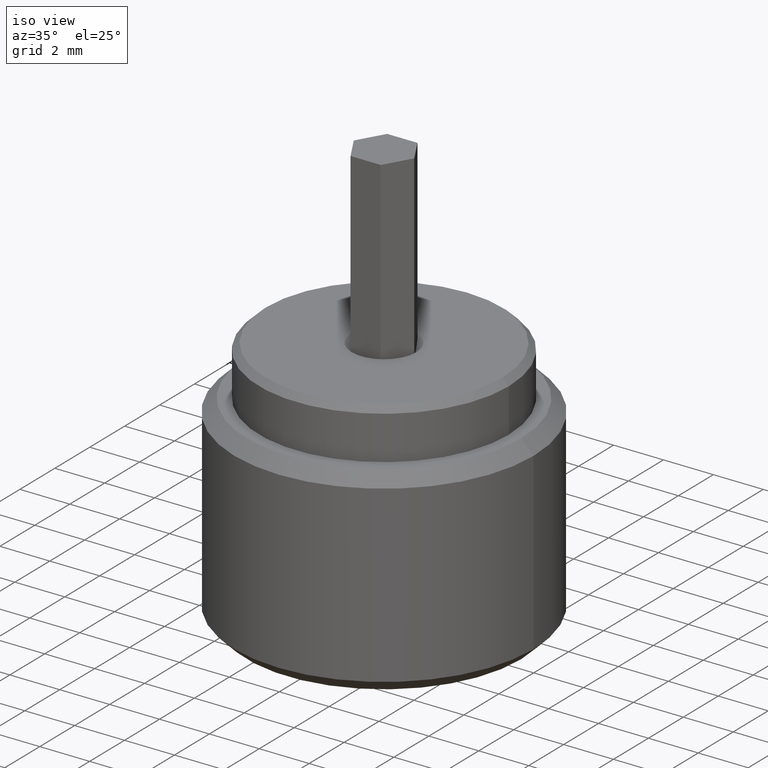
[diagram: clean part render]
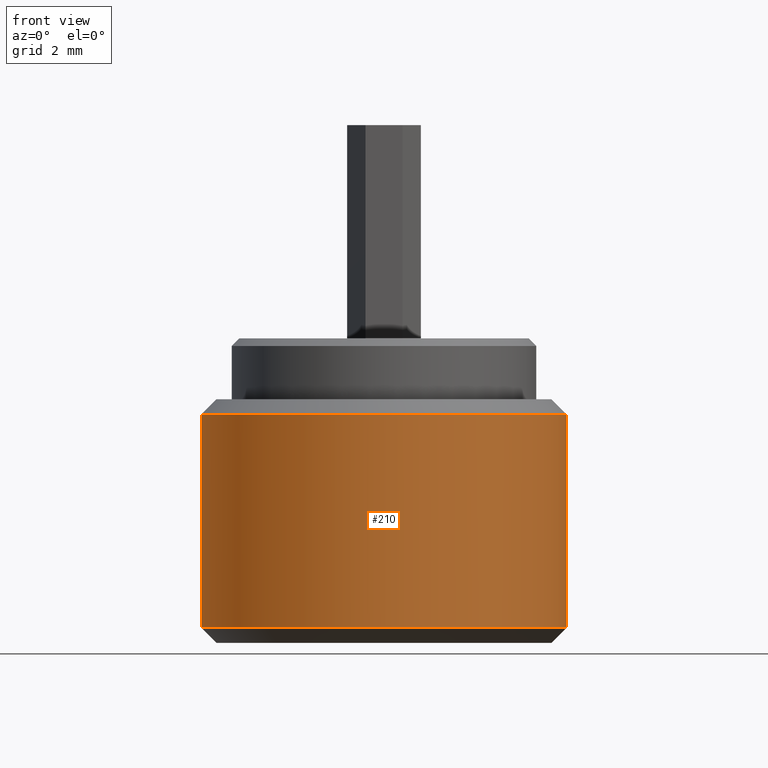
[diagram: tour spotlight — one face highlighted and labeled with its STEP entity id]
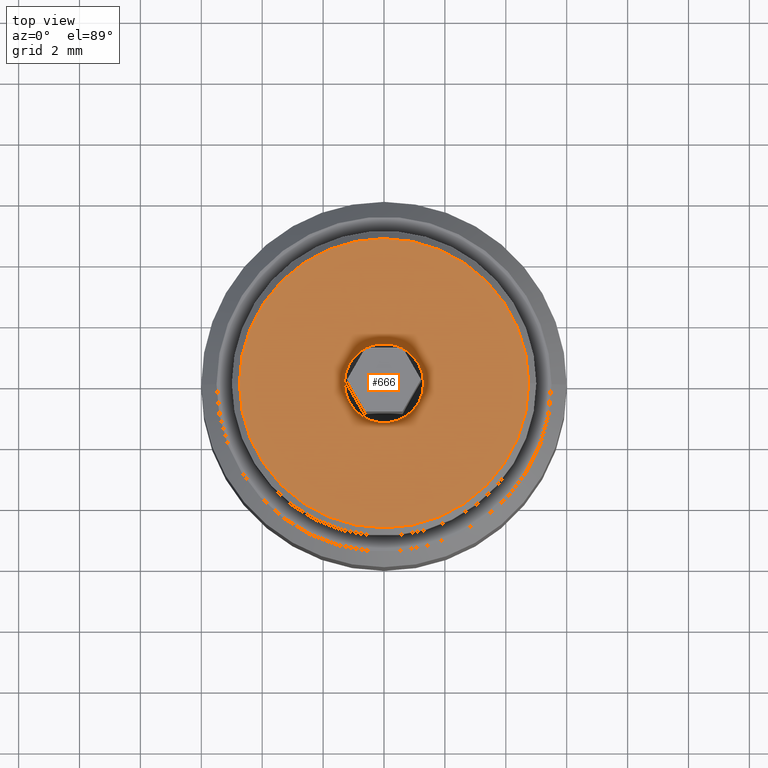
[diagram: tour spotlight — one face highlighted and labeled with its STEP entity id]
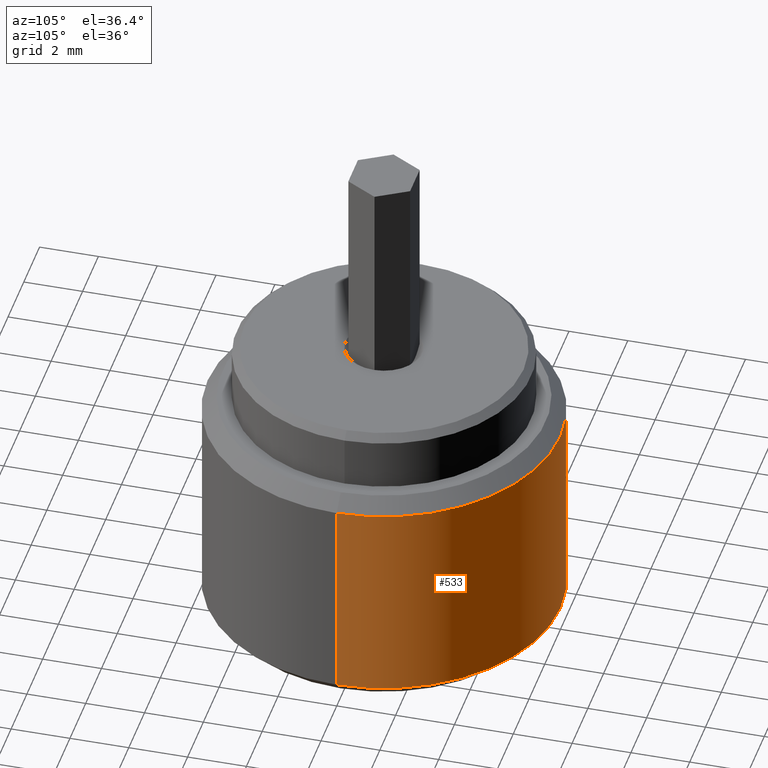
[diagram: tour spotlight — one face highlighted and labeled with its STEP entity id]
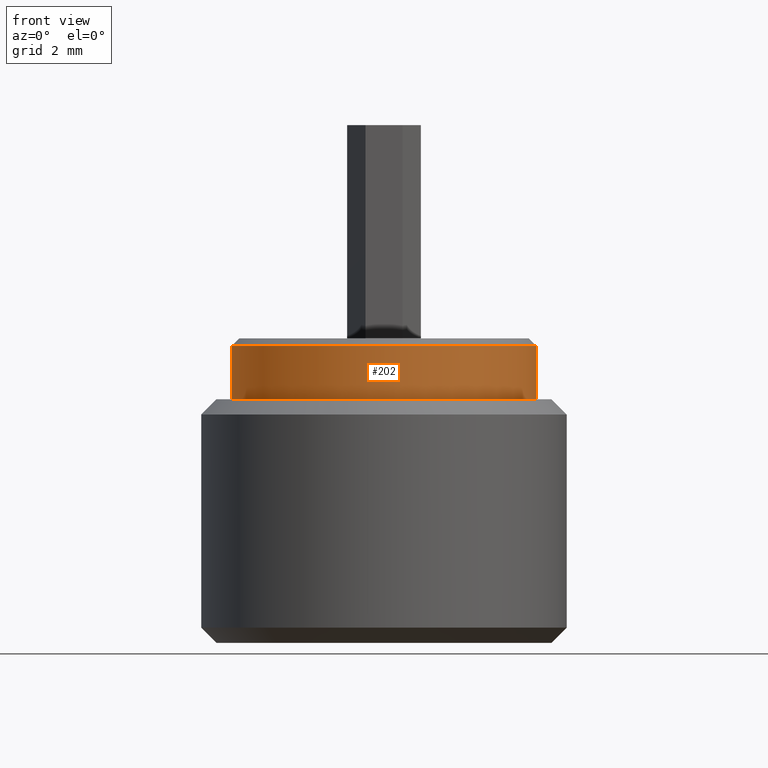
[diagram: tour spotlight — one face highlighted and labeled with its STEP entity id]
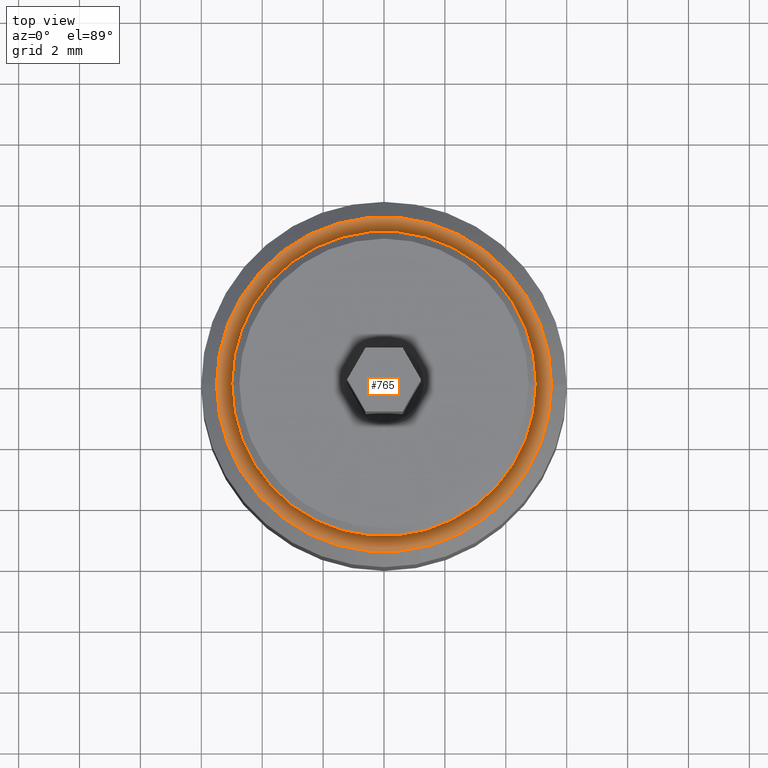
[diagram: tour spotlight — one face highlighted and labeled with its STEP entity id]
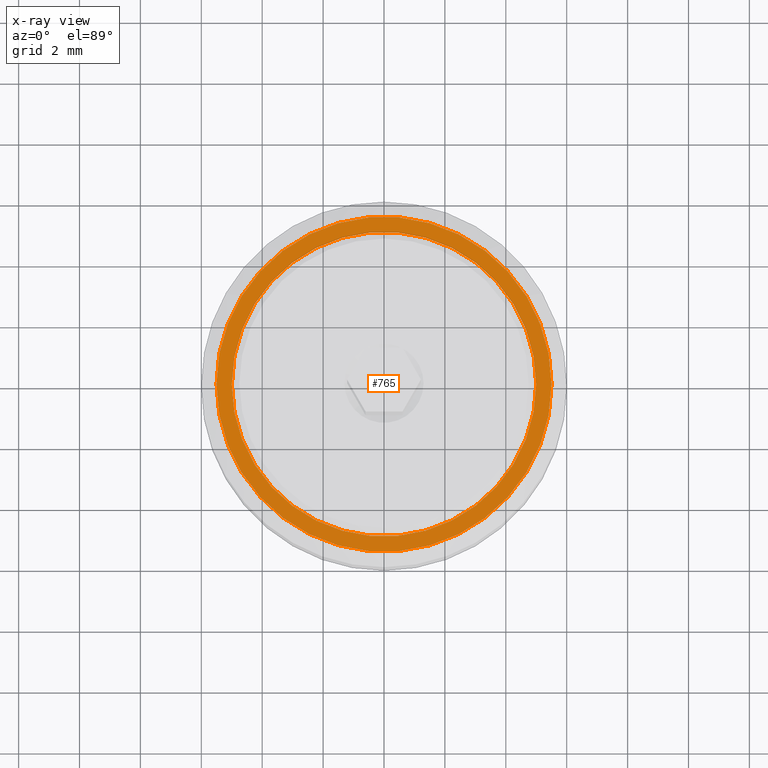
[diagram: x-ray of the same camera — body ghosted, this tour face saturated]
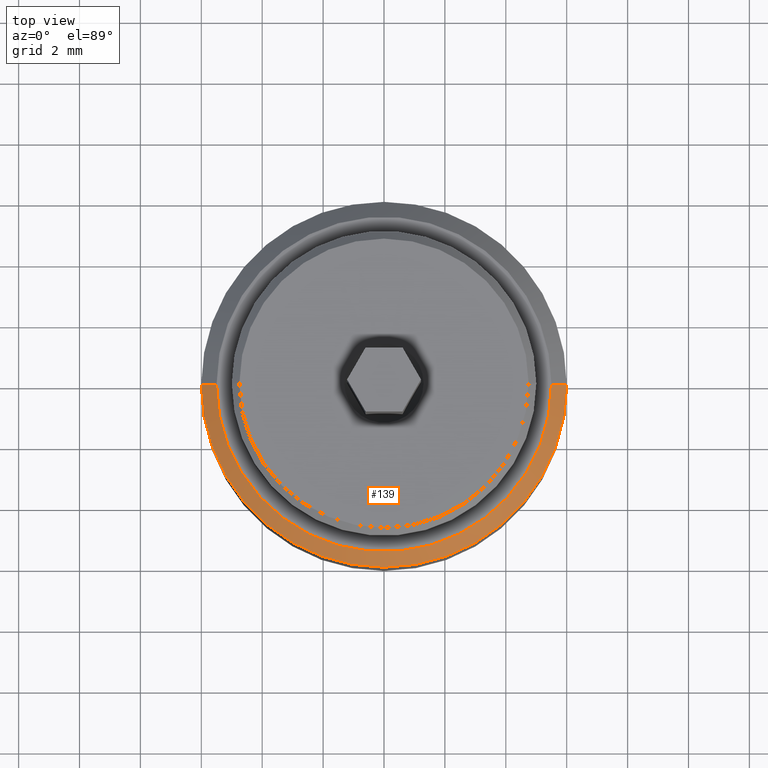
[diagram: tour spotlight — one face highlighted and labeled with its STEP entity id]
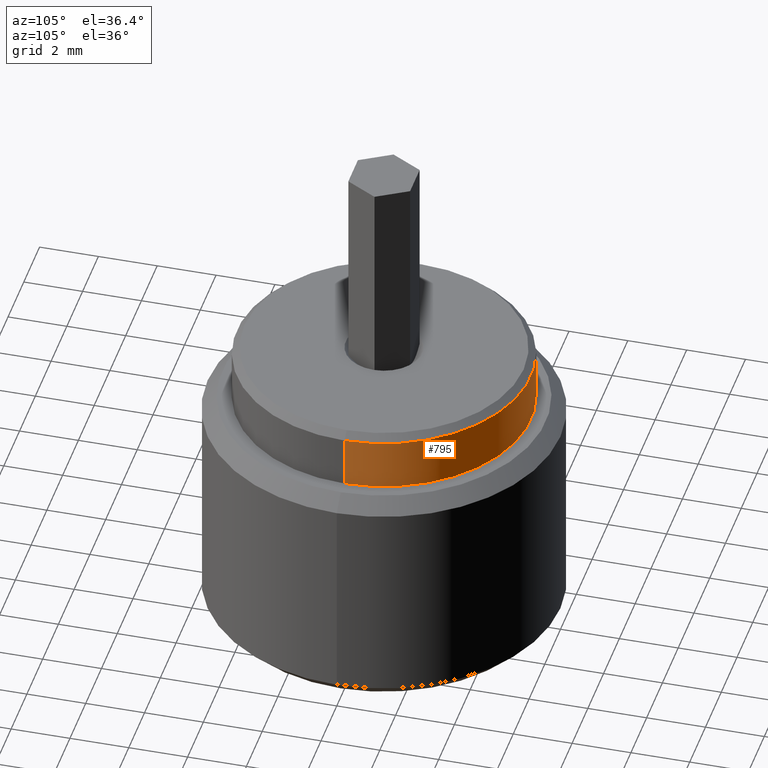
[diagram: tour spotlight — one face highlighted and labeled with its STEP entity id]
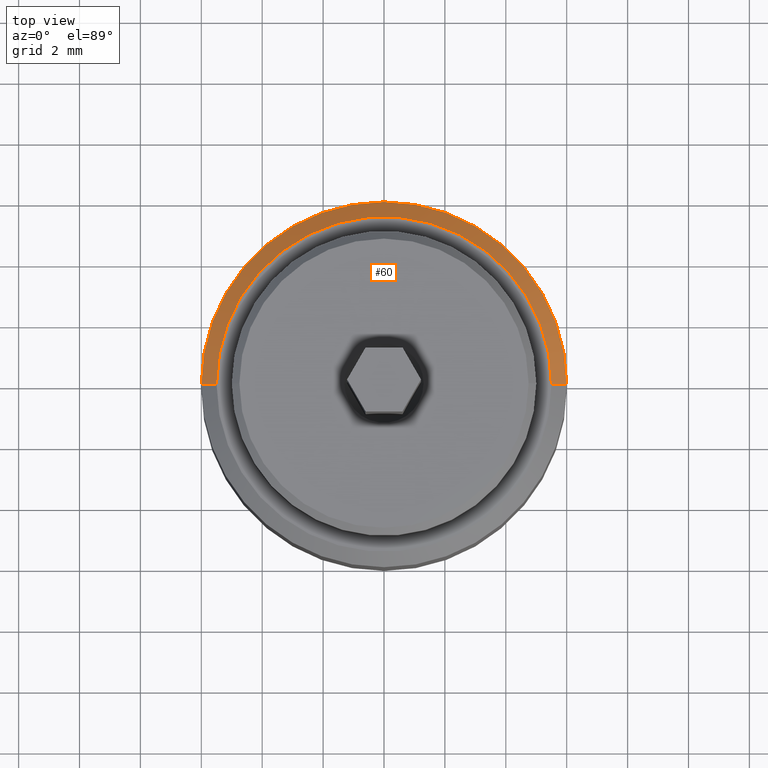
[diagram: tour spotlight — one face highlighted and labeled with its STEP entity id]
A machine part: a face-by-face anatomy tour. The part has 26 B-rep faces; the first image is the clean iso view, then the 8 largest visible faces are spotlighted one at a time (largest first), each with its STEP entity span.

Face 1 — front view, entity #210. In plain terms, the highlighted cylindrical surface (partial cylindrical patch) has radius 6 mm, axis along (-0, -0, -1).
Definition (entity closure, byte-faithful):
#63 = VERTEX_POINT ( 'NONE', #472 ) ;
#100 = EDGE_CURVE ( 'NONE', #854, #401, #190, .T. ) ;
#113 = EDGE_CURVE ( 'NONE', #63, #545, #373, .T. ) ;
#123 = VECTOR ( 'NONE', #716, 1000.000000000000000 ) ;
#152 = ORIENTED_EDGE ( 'NONE', *, *, #113, .T. ) ;
#156 = DIRECTION ( 'NONE',  ( 1.000000000000000000, 0.000000000000000000, 0.000000000000000000 ) ) ;
#189 = VECTOR ( 'NONE', #482, 1000.000000000000000 ) ;
#190 = CIRCLE ( 'NONE', #421, 6.000000000000000888 ) ;
#210 = ADVANCED_FACE ( 'NONE', ( #940 ), #959, .T. ) ;
#228 = DIRECTION ( 'NONE',  ( 1.000000000000000000, 0.000000000000000000, 0.000000000000000000 ) ) ;
#229 = ORIENTED_EDGE ( 'NONE', *, *, #282, .F. ) ;
#244 = CARTESIAN_POINT ( 'NONE',  ( 6.000000000000000888, 7.347880794884120722E-16, 0.4999999999999987232 ) ) ;
#265 = LINE ( 'NONE', #478, #123 ) ;
#282 = EDGE_CURVE ( 'NONE', #854, #545, #265, .T. ) ;
#329 = AXIS2_PLACEMENT_3D ( 'NONE', #338, #867, #884 ) ;
#330 = ORIENTED_EDGE ( 'NONE', *, *, #818, .T. ) ;
#338 = CARTESIAN_POINT ( 'NONE',  ( 0.000000000000000000, 0.000000000000000000, 10.00000000000000000 ) ) ;
#373 = CIRCLE ( 'NONE', #742, 6.000000000000000888 ) ;
#401 = VERTEX_POINT ( 'NONE', #970 ) ;
#421 = AXIS2_PLACEMENT_3D ( 'NONE', #764, #623, #228 ) ;
#472 = CARTESIAN_POINT ( 'NONE',  ( -6.000000000000000888, 0.000000000000000000, 0.4999999999999987232 ) ) ;
#478 = CARTESIAN_POINT ( 'NONE',  ( 6.000000000000000888, 7.347880794884120722E-16, 10.00000000000000000 ) ) ;
#482 = DIRECTION ( 'NONE',  ( -0.000000000000000000, -0.000000000000000000, -1.000000000000000000 ) ) ;
#538 = EDGE_LOOP ( 'NONE', ( #229, #599, #330, #152 ) ) ;
#545 = VERTEX_POINT ( 'NONE', #244 ) ;
#599 = ORIENTED_EDGE ( 'NONE', *, *, #100, .T. ) ;
#623 = DIRECTION ( 'NONE',  ( -0.000000000000000000, -0.000000000000000000, -1.000000000000000000 ) ) ;
#698 = DIRECTION ( 'NONE',  ( -0.000000000000000000, -0.000000000000000000, 1.000000000000000000 ) ) ;
#712 = LINE ( 'NONE', #797, #189 ) ;
#716 = DIRECTION ( 'NONE',  ( -0.000000000000000000, -0.000000000000000000, -1.000000000000000000 ) ) ;
#742 = AXIS2_PLACEMENT_3D ( 'NONE', #848, #698, #156 ) ;
#764 = CARTESIAN_POINT ( 'NONE',  ( 0.000000000000000000, 0.000000000000000000, 7.500000000000000000 ) ) ;
#797 = CARTESIAN_POINT ( 'NONE',  ( -6.000000000000000888, 0.000000000000000000, 10.00000000000000000 ) ) ;
#818 = EDGE_CURVE ( 'NONE', #401, #63, #712, .T. ) ;
#848 = CARTESIAN_POINT ( 'NONE',  ( 0.000000000000000000, 0.000000000000000000, 0.4999999999999987232 ) ) ;
#854 = VERTEX_POINT ( 'NONE', #956 ) ;
#867 = DIRECTION ( 'NONE',  ( -0.000000000000000000, -0.000000000000000000, -1.000000000000000000 ) ) ;
#884 = DIRECTION ( 'NONE',  ( -1.000000000000000000, 0.000000000000000000, 0.000000000000000000 ) ) ;
#940 = FACE_OUTER_BOUND ( 'NONE', #538, .T. ) ;
#956 = CARTESIAN_POINT ( 'NONE',  ( 6.000000000000000888, 7.347880794884120722E-16, 7.500000000000000000 ) ) ;
#959 = CYLINDRICAL_SURFACE ( 'NONE', #329, 6.000000000000000888 ) ;
#970 = CARTESIAN_POINT ( 'NONE',  ( -6.000000000000000888, 0.000000000000000000, 7.500000000000000000 ) ) ;

Face 2 — top view, entity #666. In plain terms, the highlighted planar face has unit normal (0, 0, 1).
Definition (entity closure, byte-faithful):
#6 = VERTEX_POINT ( 'NONE', #603 ) ;
#44 = AXIS2_PLACEMENT_3D ( 'NONE', #897, #425, #135 ) ;
#53 = CARTESIAN_POINT ( 'NONE',  ( -4.750000000000007105, 0.000000000000000000, 10.00000000000000000 ) ) ;
#66 = CARTESIAN_POINT ( 'NONE',  ( 0.000000000000000000, 0.000000000000000000, 10.00000000000000000 ) ) ;
#78 = FACE_OUTER_BOUND ( 'NONE', #608, .T. ) ;
#89 = ORIENTED_EDGE ( 'NONE', *, *, #388, .T. ) ;
#90 = AXIS2_PLACEMENT_3D ( 'NONE', #132, #659, #583 ) ;
#132 = CARTESIAN_POINT ( 'NONE',  ( 0.000000000000000000, 0.000000000000000000, 10.00000000000000000 ) ) ;
#135 = DIRECTION ( 'NONE',  ( 1.000000000000000000, 0.000000000000000000, 0.000000000000000000 ) ) ;
#208 = DIRECTION ( 'NONE',  ( 1.000000000000000000, 0.000000000000000000, 0.000000000000000000 ) ) ;
#226 = DIRECTION ( 'NONE',  ( 1.000000000000000000, 0.000000000000000000, -0.000000000000000000 ) ) ;
#253 = AXIS2_PLACEMENT_3D ( 'NONE', #697, #292, #596 ) ;
#268 = CIRCLE ( 'NONE', #44, 1.300000000000002487 ) ;
#292 = DIRECTION ( 'NONE',  ( 0.000000000000000000, 0.000000000000000000, 1.000000000000000000 ) ) ;
#384 = PLANE ( 'NONE',  #943 ) ;
#386 = VERTEX_POINT ( 'NONE', #53 ) ;
#388 = EDGE_CURVE ( 'NONE', #6, #675, #268, .T. ) ;
#425 = DIRECTION ( 'NONE',  ( -0.000000000000000000, -0.000000000000000000, -1.000000000000000000 ) ) ;
#430 = VERTEX_POINT ( 'NONE', #653 ) ;
#461 = EDGE_CURVE ( 'NONE', #675, #6, #987, .T. ) ;
#470 = FACE_BOUND ( 'NONE', #540, .T. ) ;
#473 = CIRCLE ( 'NONE', #90, 4.750000000000007105 ) ;
#484 = EDGE_CURVE ( 'NONE', #430, #386, #473, .T. ) ;
#498 = DIRECTION ( 'NONE',  ( -0.000000000000000000, -0.000000000000000000, -1.000000000000000000 ) ) ;
#518 = ORIENTED_EDGE ( 'NONE', *, *, #733, .T. ) ;
#540 = EDGE_LOOP ( 'NONE', ( #773, #89 ) ) ;
#583 = DIRECTION ( 'NONE',  ( 1.000000000000000000, 0.000000000000000000, 0.000000000000000000 ) ) ;
#595 = AXIS2_PLACEMENT_3D ( 'NONE', #974, #498, #208 ) ;
#596 = DIRECTION ( 'NONE',  ( 1.000000000000000000, 0.000000000000000000, 0.000000000000000000 ) ) ;
#603 = CARTESIAN_POINT ( 'NONE',  ( -1.300000000000002487, 1.592040838891562300E-16, 10.00000000000000000 ) ) ;
#608 = EDGE_LOOP ( 'NONE', ( #518, #832 ) ) ;
#613 = CIRCLE ( 'NONE', #253, 4.750000000000007105 ) ;
#653 = CARTESIAN_POINT ( 'NONE',  ( 4.750000000000007105, 5.970153145843351291E-16, 10.00000000000000000 ) ) ;
#659 = DIRECTION ( 'NONE',  ( 0.000000000000000000, 0.000000000000000000, 1.000000000000000000 ) ) ;
#666 = ADVANCED_FACE ( 'NONE', ( #470, #78 ), #384, .T. ) ;
#673 = DIRECTION ( 'NONE',  ( 0.000000000000000000, 0.000000000000000000, 1.000000000000000000 ) ) ;
#675 = VERTEX_POINT ( 'NONE', #919 ) ;
#697 = CARTESIAN_POINT ( 'NONE',  ( 0.000000000000000000, 0.000000000000000000, 10.00000000000000000 ) ) ;
#733 = EDGE_CURVE ( 'NONE', #386, #430, #613, .T. ) ;
#773 = ORIENTED_EDGE ( 'NONE', *, *, #461, .T. ) ;
#832 = ORIENTED_EDGE ( 'NONE', *, *, #484, .T. ) ;
#897 = CARTESIAN_POINT ( 'NONE',  ( 0.000000000000000000, 0.000000000000000000, 10.00000000000000000 ) ) ;
#919 = CARTESIAN_POINT ( 'NONE',  ( 1.300000000000002487, 0.000000000000000000, 10.00000000000000000 ) ) ;
#943 = AXIS2_PLACEMENT_3D ( 'NONE', #66, #673, #226 ) ;
#974 = CARTESIAN_POINT ( 'NONE',  ( 0.000000000000000000, 0.000000000000000000, 10.00000000000000000 ) ) ;
#987 = CIRCLE ( 'NONE', #595, 1.300000000000002487 ) ;

Face 3 — auxiliary view, entity #533. In plain terms, the highlighted cylindrical surface (partial cylindrical patch) has radius 6 mm, axis along (-0, -0, -1).
Definition (entity closure, byte-faithful):
#10 = EDGE_CURVE ( 'NONE', #401, #854, #676, .T. ) ;
#11 = DIRECTION ( 'NONE',  ( -1.000000000000000000, 0.000000000000000000, 0.000000000000000000 ) ) ;
#63 = VERTEX_POINT ( 'NONE', #472 ) ;
#93 = DIRECTION ( 'NONE',  ( 1.000000000000000000, 0.000000000000000000, 0.000000000000000000 ) ) ;
#110 = AXIS2_PLACEMENT_3D ( 'NONE', #550, #872, #951 ) ;
#123 = VECTOR ( 'NONE', #716, 1000.000000000000000 ) ;
#138 = ORIENTED_EDGE ( 'NONE', *, *, #282, .T. ) ;
#176 = AXIS2_PLACEMENT_3D ( 'NONE', #683, #846, #11 ) ;
#180 = ORIENTED_EDGE ( 'NONE', *, *, #230, .T. ) ;
#189 = VECTOR ( 'NONE', #482, 1000.000000000000000 ) ;
#230 = EDGE_CURVE ( 'NONE', #545, #63, #985, .T. ) ;
#244 = CARTESIAN_POINT ( 'NONE',  ( 6.000000000000000888, 7.347880794884120722E-16, 0.4999999999999987232 ) ) ;
#265 = LINE ( 'NONE', #478, #123 ) ;
#272 = FACE_OUTER_BOUND ( 'NONE', #636, .T. ) ;
#282 = EDGE_CURVE ( 'NONE', #854, #545, #265, .T. ) ;
#352 = ORIENTED_EDGE ( 'NONE', *, *, #818, .F. ) ;
#401 = VERTEX_POINT ( 'NONE', #970 ) ;
#472 = CARTESIAN_POINT ( 'NONE',  ( -6.000000000000000888, 0.000000000000000000, 0.4999999999999987232 ) ) ;
#478 = CARTESIAN_POINT ( 'NONE',  ( 6.000000000000000888, 7.347880794884120722E-16, 10.00000000000000000 ) ) ;
#482 = DIRECTION ( 'NONE',  ( -0.000000000000000000, -0.000000000000000000, -1.000000000000000000 ) ) ;
#533 = ADVANCED_FACE ( 'NONE', ( #272 ), #808, .T. ) ;
#545 = VERTEX_POINT ( 'NONE', #244 ) ;
#550 = CARTESIAN_POINT ( 'NONE',  ( 0.000000000000000000, 0.000000000000000000, 0.4999999999999987232 ) ) ;
#636 = EDGE_LOOP ( 'NONE', ( #952, #138, #180, #352 ) ) ;
#676 = CIRCLE ( 'NONE', #695, 6.000000000000000888 ) ;
#683 = CARTESIAN_POINT ( 'NONE',  ( 0.000000000000000000, 0.000000000000000000, 10.00000000000000000 ) ) ;
#695 = AXIS2_PLACEMENT_3D ( 'NONE', #781, #928, #93 ) ;
#712 = LINE ( 'NONE', #797, #189 ) ;
#716 = DIRECTION ( 'NONE',  ( -0.000000000000000000, -0.000000000000000000, -1.000000000000000000 ) ) ;
#781 = CARTESIAN_POINT ( 'NONE',  ( 0.000000000000000000, 0.000000000000000000, 7.500000000000000000 ) ) ;
#797 = CARTESIAN_POINT ( 'NONE',  ( -6.000000000000000888, 0.000000000000000000, 10.00000000000000000 ) ) ;
#808 = CYLINDRICAL_SURFACE ( 'NONE', #176, 6.000000000000000888 ) ;
#818 = EDGE_CURVE ( 'NONE', #401, #63, #712, .T. ) ;
#846 = DIRECTION ( 'NONE',  ( -0.000000000000000000, -0.000000000000000000, -1.000000000000000000 ) ) ;
#854 = VERTEX_POINT ( 'NONE', #956 ) ;
#872 = DIRECTION ( 'NONE',  ( -0.000000000000000000, -0.000000000000000000, 1.000000000000000000 ) ) ;
#928 = DIRECTION ( 'NONE',  ( -0.000000000000000000, -0.000000000000000000, -1.000000000000000000 ) ) ;
#951 = DIRECTION ( 'NONE',  ( 1.000000000000000000, 0.000000000000000000, 0.000000000000000000 ) ) ;
#952 = ORIENTED_EDGE ( 'NONE', *, *, #10, .T. ) ;
#956 = CARTESIAN_POINT ( 'NONE',  ( 6.000000000000000888, 7.347880794884120722E-16, 7.500000000000000000 ) ) ;
#970 = CARTESIAN_POINT ( 'NONE',  ( -6.000000000000000888, 0.000000000000000000, 7.500000000000000000 ) ) ;
#985 = CIRCLE ( 'NONE', #110, 6.000000000000000888 ) ;

Face 4 — front view, entity #202. In plain terms, the highlighted cylindrical surface (partial cylindrical patch) has radius 5 mm, axis along (0, 0, 1).
Definition (entity closure, byte-faithful):
#37 = DIRECTION ( 'NONE',  ( 1.000000000000000000, 0.000000000000000000, 0.000000000000000000 ) ) ;
#59 = DIRECTION ( 'NONE',  ( 1.000000000000000000, 0.000000000000000000, 0.000000000000000000 ) ) ;
#71 = VERTEX_POINT ( 'NONE', #311 ) ;
#111 = DIRECTION ( 'NONE',  ( 1.000000000000000000, 0.000000000000000000, 0.000000000000000000 ) ) ;
#121 = CIRCLE ( 'NONE', #212, 5.000000000000000000 ) ;
#178 = CARTESIAN_POINT ( 'NONE',  ( 0.000000000000000000, 0.000000000000000000, 9.750000000000005329 ) ) ;
#183 = CARTESIAN_POINT ( 'NONE',  ( -5.000000000000000000, 6.123233995736765296E-16, -16.97056274847714263 ) ) ;
#186 = DIRECTION ( 'NONE',  ( 0.000000000000000000, 0.000000000000000000, -1.000000000000000000 ) ) ;
#188 = EDGE_CURVE ( 'NONE', #534, #618, #488, .T. ) ;
#196 = CARTESIAN_POINT ( 'NONE',  ( 5.000000000000000000, 0.000000000000000000, 8.000000000000000000 ) ) ;
#202 = ADVANCED_FACE ( 'NONE', ( #946 ), #413, .T. ) ;
#212 = AXIS2_PLACEMENT_3D ( 'NONE', #178, #186, #111 ) ;
#224 = ORIENTED_EDGE ( 'NONE', *, *, #842, .T. ) ;
#245 = VERTEX_POINT ( 'NONE', #196 ) ;
#290 = AXIS2_PLACEMENT_3D ( 'NONE', #464, #851, #59 ) ;
#311 = CARTESIAN_POINT ( 'NONE',  ( 5.000000000000000000, 0.000000000000000000, 9.750000000000005329 ) ) ;
#341 = DIRECTION ( 'NONE',  ( -0.000000000000000000, -0.000000000000000000, 1.000000000000000000 ) ) ;
#378 = ORIENTED_EDGE ( 'NONE', *, *, #582, .T. ) ;
#413 = CYLINDRICAL_SURFACE ( 'NONE', #634, 5.000000000000000000 ) ;
#454 = LINE ( 'NONE', #537, #615 ) ;
#464 = CARTESIAN_POINT ( 'NONE',  ( 0.000000000000000000, 0.000000000000000000, 8.000000000000000000 ) ) ;
#488 = LINE ( 'NONE', #183, #971 ) ;
#534 = VERTEX_POINT ( 'NONE', #934 ) ;
#537 = CARTESIAN_POINT ( 'NONE',  ( 5.000000000000000000, 0.000000000000000000, -16.97056274847714263 ) ) ;
#564 = CARTESIAN_POINT ( 'NONE',  ( 0.000000000000000000, 0.000000000000000000, -16.97056274847714263 ) ) ;
#582 = EDGE_CURVE ( 'NONE', #245, #71, #454, .T. ) ;
#615 = VECTOR ( 'NONE', #756, 1000.000000000000000 ) ;
#618 = VERTEX_POINT ( 'NONE', #857 ) ;
#634 = AXIS2_PLACEMENT_3D ( 'NONE', #564, #635, #37 ) ;
#635 = DIRECTION ( 'NONE',  ( -0.000000000000000000, -0.000000000000000000, 1.000000000000000000 ) ) ;
#640 = EDGE_LOOP ( 'NONE', ( #941, #860, #378, #224 ) ) ;
#704 = EDGE_CURVE ( 'NONE', #245, #534, #901, .T. ) ;
#756 = DIRECTION ( 'NONE',  ( -0.000000000000000000, -0.000000000000000000, 1.000000000000000000 ) ) ;
#842 = EDGE_CURVE ( 'NONE', #71, #618, #121, .T. ) ;
#851 = DIRECTION ( 'NONE',  ( -0.000000000000000000, -0.000000000000000000, -1.000000000000000000 ) ) ;
#857 = CARTESIAN_POINT ( 'NONE',  ( -5.000000000000000000, 6.123233995736765296E-16, 9.750000000000005329 ) ) ;
#860 = ORIENTED_EDGE ( 'NONE', *, *, #704, .F. ) ;
#901 = CIRCLE ( 'NONE', #290, 5.000000000000000000 ) ;
#934 = CARTESIAN_POINT ( 'NONE',  ( -5.000000000000000000, 6.123233995736765296E-16, 8.000000000000000000 ) ) ;
#941 = ORIENTED_EDGE ( 'NONE', *, *, #188, .F. ) ;
#946 = FACE_OUTER_BOUND ( 'NONE', #640, .T. ) ;
#971 = VECTOR ( 'NONE', #341, 1000.000000000000000 ) ;

Face 5 — top view, entity #765. An x-ray twin of the same camera follows (body ghosted, this face saturated) — the face is partly hidden behind the body. In plain terms, the highlighted planar face has unit normal (0, 0, 1).
Definition (entity closure, byte-faithful):
#14 = CIRCLE ( 'NONE', #513, 5.500000000000000888 ) ;
#17 = DIRECTION ( 'NONE',  ( -0.000000000000000000, -0.000000000000000000, -1.000000000000000000 ) ) ;
#30 = ORIENTED_EDGE ( 'NONE', *, *, #704, .T. ) ;
#59 = DIRECTION ( 'NONE',  ( 1.000000000000000000, 0.000000000000000000, 0.000000000000000000 ) ) ;
#74 = ORIENTED_EDGE ( 'NONE', *, *, #566, .T. ) ;
#112 = DIRECTION ( 'NONE',  ( 1.000000000000000000, 0.000000000000000000, 0.000000000000000000 ) ) ;
#124 = ORIENTED_EDGE ( 'NONE', *, *, #467, .T. ) ;
#142 = CARTESIAN_POINT ( 'NONE',  ( -5.500000000000000888, 0.000000000000000000, 8.000000000000000000 ) ) ;
#147 = FACE_OUTER_BOUND ( 'NONE', #242, .T. ) ;
#182 = DIRECTION ( 'NONE',  ( 0.000000000000000000, 0.000000000000000000, 1.000000000000000000 ) ) ;
#196 = CARTESIAN_POINT ( 'NONE',  ( 5.000000000000000000, 0.000000000000000000, 8.000000000000000000 ) ) ;
#242 = EDGE_LOOP ( 'NONE', ( #124, #705 ) ) ;
#245 = VERTEX_POINT ( 'NONE', #196 ) ;
#255 = AXIS2_PLACEMENT_3D ( 'NONE', #279, #815, #364 ) ;
#279 = CARTESIAN_POINT ( 'NONE',  ( 0.000000000000000000, 0.000000000000000000, 8.000000000000000000 ) ) ;
#290 = AXIS2_PLACEMENT_3D ( 'NONE', #464, #851, #59 ) ;
#293 = CIRCLE ( 'NONE', #865, 5.000000000000000000 ) ;
#303 = DIRECTION ( 'NONE',  ( 1.000000000000000000, 0.000000000000000000, 0.000000000000000000 ) ) ;
#332 = CARTESIAN_POINT ( 'NONE',  ( 5.500000000000000888, 7.041719095097281866E-16, 8.000000000000000000 ) ) ;
#347 = EDGE_CURVE ( 'NONE', #948, #522, #14, .T. ) ;
#364 = DIRECTION ( 'NONE',  ( 1.000000000000000000, 0.000000000000000000, 0.000000000000000000 ) ) ;
#372 = AXIS2_PLACEMENT_3D ( 'NONE', #646, #182, #477 ) ;
#404 = CARTESIAN_POINT ( 'NONE',  ( 0.000000000000000000, 0.000000000000000000, 8.000000000000000000 ) ) ;
#450 = FACE_BOUND ( 'NONE', #692, .T. ) ;
#464 = CARTESIAN_POINT ( 'NONE',  ( 0.000000000000000000, 0.000000000000000000, 8.000000000000000000 ) ) ;
#467 = EDGE_CURVE ( 'NONE', #522, #948, #826, .T. ) ;
#477 = DIRECTION ( 'NONE',  ( 1.000000000000000000, 0.000000000000000000, -0.000000000000000000 ) ) ;
#487 = PLANE ( 'NONE',  #372 ) ;
#513 = AXIS2_PLACEMENT_3D ( 'NONE', #404, #800, #112 ) ;
#522 = VERTEX_POINT ( 'NONE', #142 ) ;
#534 = VERTEX_POINT ( 'NONE', #934 ) ;
#566 = EDGE_CURVE ( 'NONE', #534, #245, #293, .T. ) ;
#601 = CARTESIAN_POINT ( 'NONE',  ( 0.000000000000000000, 0.000000000000000000, 8.000000000000000000 ) ) ;
#646 = CARTESIAN_POINT ( 'NONE',  ( 0.000000000000000000, 0.000000000000000000, 8.000000000000000000 ) ) ;
#692 = EDGE_LOOP ( 'NONE', ( #30, #74 ) ) ;
#704 = EDGE_CURVE ( 'NONE', #245, #534, #901, .T. ) ;
#705 = ORIENTED_EDGE ( 'NONE', *, *, #347, .T. ) ;
#765 = ADVANCED_FACE ( 'NONE', ( #147, #450 ), #487, .T. ) ;
#800 = DIRECTION ( 'NONE',  ( 0.000000000000000000, 0.000000000000000000, 1.000000000000000000 ) ) ;
#815 = DIRECTION ( 'NONE',  ( 0.000000000000000000, 0.000000000000000000, 1.000000000000000000 ) ) ;
#826 = CIRCLE ( 'NONE', #255, 5.500000000000000888 ) ;
#851 = DIRECTION ( 'NONE',  ( -0.000000000000000000, -0.000000000000000000, -1.000000000000000000 ) ) ;
#865 = AXIS2_PLACEMENT_3D ( 'NONE', #601, #17, #303 ) ;
#901 = CIRCLE ( 'NONE', #290, 5.000000000000000000 ) ;
#934 = CARTESIAN_POINT ( 'NONE',  ( -5.000000000000000000, 6.123233995736765296E-16, 8.000000000000000000 ) ) ;
#948 = VERTEX_POINT ( 'NONE', #332 ) ;

Face 6 — top view, entity #139. In plain terms, the highlighted conical surface has half-angle 45 deg.
Definition (entity closure, byte-faithful):
#68 = FACE_OUTER_BOUND ( 'NONE', #475, .T. ) ;
#100 = EDGE_CURVE ( 'NONE', #854, #401, #190, .T. ) ;
#139 = ADVANCED_FACE ( 'NONE', ( #68 ), #798, .T. ) ;
#142 = CARTESIAN_POINT ( 'NONE',  ( -5.500000000000000888, 0.000000000000000000, 8.000000000000000000 ) ) ;
#149 = ORIENTED_EDGE ( 'NONE', *, *, #157, .T. ) ;
#157 = EDGE_CURVE ( 'NONE', #522, #401, #327, .T. ) ;
#184 = ORIENTED_EDGE ( 'NONE', *, *, #100, .F. ) ;
#190 = CIRCLE ( 'NONE', #421, 6.000000000000000888 ) ;
#228 = DIRECTION ( 'NONE',  ( 1.000000000000000000, 0.000000000000000000, 0.000000000000000000 ) ) ;
#235 = DIRECTION ( 'NONE',  ( -0.000000000000000000, -0.000000000000000000, -1.000000000000000000 ) ) ;
#255 = AXIS2_PLACEMENT_3D ( 'NONE', #279, #815, #364 ) ;
#279 = CARTESIAN_POINT ( 'NONE',  ( 0.000000000000000000, 0.000000000000000000, 8.000000000000000000 ) ) ;
#297 = ORIENTED_EDGE ( 'NONE', *, *, #467, .F. ) ;
#327 = LINE ( 'NONE', #719, #344 ) ;
#332 = CARTESIAN_POINT ( 'NONE',  ( 5.500000000000000888, 7.041719095097281866E-16, 8.000000000000000000 ) ) ;
#344 = VECTOR ( 'NONE', #724, 1000.000000000000114 ) ;
#345 = VECTOR ( 'NONE', #689, 1000.000000000000114 ) ;
#364 = DIRECTION ( 'NONE',  ( 1.000000000000000000, 0.000000000000000000, 0.000000000000000000 ) ) ;
#376 = DIRECTION ( 'NONE',  ( -1.000000000000000000, 0.000000000000000000, 0.000000000000000000 ) ) ;
#401 = VERTEX_POINT ( 'NONE', #970 ) ;
#421 = AXIS2_PLACEMENT_3D ( 'NONE', #764, #623, #228 ) ;
#467 = EDGE_CURVE ( 'NONE', #522, #948, #826, .T. ) ;
#475 = EDGE_LOOP ( 'NONE', ( #559, #297, #149, #184 ) ) ;
#522 = VERTEX_POINT ( 'NONE', #142 ) ;
#552 = EDGE_CURVE ( 'NONE', #948, #854, #913, .T. ) ;
#559 = ORIENTED_EDGE ( 'NONE', *, *, #552, .F. ) ;
#623 = DIRECTION ( 'NONE',  ( -0.000000000000000000, -0.000000000000000000, -1.000000000000000000 ) ) ;
#689 = DIRECTION ( 'NONE',  ( 0.7071067811865474617, 8.659560562354932858E-17, -0.7071067811865474617 ) ) ;
#719 = CARTESIAN_POINT ( 'NONE',  ( -6.000000000000000888, 0.000000000000000000, 7.500000000000000000 ) ) ;
#724 = DIRECTION ( 'NONE',  ( -0.7071067811865474617, 0.000000000000000000, -0.7071067811865474617 ) ) ;
#758 = CARTESIAN_POINT ( 'NONE',  ( 0.000000000000000000, 0.000000000000000000, 7.500000000000000000 ) ) ;
#763 = CARTESIAN_POINT ( 'NONE',  ( 6.000000000000000888, 7.347880794884120722E-16, 7.500000000000000000 ) ) ;
#764 = CARTESIAN_POINT ( 'NONE',  ( 0.000000000000000000, 0.000000000000000000, 7.500000000000000000 ) ) ;
#798 = CONICAL_SURFACE ( 'NONE', #844, 6.000000000000000888, 0.7853981633974482790 ) ;
#815 = DIRECTION ( 'NONE',  ( 0.000000000000000000, 0.000000000000000000, 1.000000000000000000 ) ) ;
#826 = CIRCLE ( 'NONE', #255, 5.500000000000000888 ) ;
#844 = AXIS2_PLACEMENT_3D ( 'NONE', #758, #235, #376 ) ;
#854 = VERTEX_POINT ( 'NONE', #956 ) ;
#913 = LINE ( 'NONE', #763, #345 ) ;
#948 = VERTEX_POINT ( 'NONE', #332 ) ;
#956 = CARTESIAN_POINT ( 'NONE',  ( 6.000000000000000888, 7.347880794884120722E-16, 7.500000000000000000 ) ) ;
#970 = CARTESIAN_POINT ( 'NONE',  ( -6.000000000000000888, 0.000000000000000000, 7.500000000000000000 ) ) ;

Face 7 — auxiliary view, entity #795. In plain terms, the highlighted cylindrical surface (partial cylindrical patch) has radius 5 mm, axis along (0, 0, 1).
Definition (entity closure, byte-faithful):
#17 = DIRECTION ( 'NONE',  ( -0.000000000000000000, -0.000000000000000000, -1.000000000000000000 ) ) ;
#20 = ORIENTED_EDGE ( 'NONE', *, *, #581, .T. ) ;
#71 = VERTEX_POINT ( 'NONE', #311 ) ;
#165 = DIRECTION ( 'NONE',  ( 1.000000000000000000, 0.000000000000000000, 0.000000000000000000 ) ) ;
#183 = CARTESIAN_POINT ( 'NONE',  ( -5.000000000000000000, 6.123233995736765296E-16, -16.97056274847714263 ) ) ;
#188 = EDGE_CURVE ( 'NONE', #534, #618, #488, .T. ) ;
#196 = CARTESIAN_POINT ( 'NONE',  ( 5.000000000000000000, 0.000000000000000000, 8.000000000000000000 ) ) ;
#245 = VERTEX_POINT ( 'NONE', #196 ) ;
#269 = DIRECTION ( 'NONE',  ( 1.000000000000000000, 0.000000000000000000, 0.000000000000000000 ) ) ;
#293 = CIRCLE ( 'NONE', #865, 5.000000000000000000 ) ;
#303 = DIRECTION ( 'NONE',  ( 1.000000000000000000, 0.000000000000000000, 0.000000000000000000 ) ) ;
#311 = CARTESIAN_POINT ( 'NONE',  ( 5.000000000000000000, 0.000000000000000000, 9.750000000000005329 ) ) ;
#321 = CYLINDRICAL_SURFACE ( 'NONE', #879, 5.000000000000000000 ) ;
#341 = DIRECTION ( 'NONE',  ( -0.000000000000000000, -0.000000000000000000, 1.000000000000000000 ) ) ;
#395 = ORIENTED_EDGE ( 'NONE', *, *, #188, .T. ) ;
#408 = DIRECTION ( 'NONE',  ( -0.000000000000000000, -0.000000000000000000, 1.000000000000000000 ) ) ;
#422 = CIRCLE ( 'NONE', #811, 5.000000000000000000 ) ;
#454 = LINE ( 'NONE', #537, #615 ) ;
#488 = LINE ( 'NONE', #183, #971 ) ;
#530 = DIRECTION ( 'NONE',  ( 0.000000000000000000, 0.000000000000000000, -1.000000000000000000 ) ) ;
#534 = VERTEX_POINT ( 'NONE', #934 ) ;
#537 = CARTESIAN_POINT ( 'NONE',  ( 5.000000000000000000, 0.000000000000000000, -16.97056274847714263 ) ) ;
#566 = EDGE_CURVE ( 'NONE', #534, #245, #293, .T. ) ;
#581 = EDGE_CURVE ( 'NONE', #618, #71, #422, .T. ) ;
#582 = EDGE_CURVE ( 'NONE', #245, #71, #454, .T. ) ;
#601 = CARTESIAN_POINT ( 'NONE',  ( 0.000000000000000000, 0.000000000000000000, 8.000000000000000000 ) ) ;
#607 = CARTESIAN_POINT ( 'NONE',  ( 0.000000000000000000, 0.000000000000000000, 9.750000000000005329 ) ) ;
#615 = VECTOR ( 'NONE', #756, 1000.000000000000000 ) ;
#618 = VERTEX_POINT ( 'NONE', #857 ) ;
#756 = DIRECTION ( 'NONE',  ( -0.000000000000000000, -0.000000000000000000, 1.000000000000000000 ) ) ;
#780 = FACE_OUTER_BOUND ( 'NONE', #914, .T. ) ;
#795 = ADVANCED_FACE ( 'NONE', ( #780 ), #321, .T. ) ;
#801 = CARTESIAN_POINT ( 'NONE',  ( 0.000000000000000000, 0.000000000000000000, -16.97056274847714263 ) ) ;
#811 = AXIS2_PLACEMENT_3D ( 'NONE', #607, #530, #165 ) ;
#814 = ORIENTED_EDGE ( 'NONE', *, *, #582, .F. ) ;
#857 = CARTESIAN_POINT ( 'NONE',  ( -5.000000000000000000, 6.123233995736765296E-16, 9.750000000000005329 ) ) ;
#865 = AXIS2_PLACEMENT_3D ( 'NONE', #601, #17, #303 ) ;
#879 = AXIS2_PLACEMENT_3D ( 'NONE', #801, #408, #269 ) ;
#907 = ORIENTED_EDGE ( 'NONE', *, *, #566, .F. ) ;
#914 = EDGE_LOOP ( 'NONE', ( #907, #395, #20, #814 ) ) ;
#934 = CARTESIAN_POINT ( 'NONE',  ( -5.000000000000000000, 6.123233995736765296E-16, 8.000000000000000000 ) ) ;
#971 = VECTOR ( 'NONE', #341, 1000.000000000000000 ) ;

Face 8 — top view, entity #60. In plain terms, the highlighted conical surface has half-angle 45 deg.
Definition (entity closure, byte-faithful):
#10 = EDGE_CURVE ( 'NONE', #401, #854, #676, .T. ) ;
#14 = CIRCLE ( 'NONE', #513, 5.500000000000000888 ) ;
#60 = ADVANCED_FACE ( 'NONE', ( #703 ), #580, .T. ) ;
#93 = DIRECTION ( 'NONE',  ( 1.000000000000000000, 0.000000000000000000, 0.000000000000000000 ) ) ;
#112 = DIRECTION ( 'NONE',  ( 1.000000000000000000, 0.000000000000000000, 0.000000000000000000 ) ) ;
#142 = CARTESIAN_POINT ( 'NONE',  ( -5.500000000000000888, 0.000000000000000000, 8.000000000000000000 ) ) ;
#157 = EDGE_CURVE ( 'NONE', #522, #401, #327, .T. ) ;
#246 = CARTESIAN_POINT ( 'NONE',  ( 0.000000000000000000, 0.000000000000000000, 7.500000000000000000 ) ) ;
#248 = ORIENTED_EDGE ( 'NONE', *, *, #552, .T. ) ;
#313 = ORIENTED_EDGE ( 'NONE', *, *, #347, .F. ) ;
#322 = DIRECTION ( 'NONE',  ( -1.000000000000000000, 0.000000000000000000, 0.000000000000000000 ) ) ;
#327 = LINE ( 'NONE', #719, #344 ) ;
#332 = CARTESIAN_POINT ( 'NONE',  ( 5.500000000000000888, 7.041719095097281866E-16, 8.000000000000000000 ) ) ;
#344 = VECTOR ( 'NONE', #724, 1000.000000000000114 ) ;
#345 = VECTOR ( 'NONE', #689, 1000.000000000000114 ) ;
#347 = EDGE_CURVE ( 'NONE', #948, #522, #14, .T. ) ;
#401 = VERTEX_POINT ( 'NONE', #970 ) ;
#404 = CARTESIAN_POINT ( 'NONE',  ( 0.000000000000000000, 0.000000000000000000, 8.000000000000000000 ) ) ;
#442 = EDGE_LOOP ( 'NONE', ( #313, #248, #894, #460 ) ) ;
#460 = ORIENTED_EDGE ( 'NONE', *, *, #157, .F. ) ;
#502 = AXIS2_PLACEMENT_3D ( 'NONE', #246, #853, #322 ) ;
#513 = AXIS2_PLACEMENT_3D ( 'NONE', #404, #800, #112 ) ;
#522 = VERTEX_POINT ( 'NONE', #142 ) ;
#552 = EDGE_CURVE ( 'NONE', #948, #854, #913, .T. ) ;
#580 = CONICAL_SURFACE ( 'NONE', #502, 6.000000000000000888, 0.7853981633974482790 ) ;
#676 = CIRCLE ( 'NONE', #695, 6.000000000000000888 ) ;
#689 = DIRECTION ( 'NONE',  ( 0.7071067811865474617, 8.659560562354932858E-17, -0.7071067811865474617 ) ) ;
#695 = AXIS2_PLACEMENT_3D ( 'NONE', #781, #928, #93 ) ;
#703 = FACE_OUTER_BOUND ( 'NONE', #442, .T. ) ;
#719 = CARTESIAN_POINT ( 'NONE',  ( -6.000000000000000888, 0.000000000000000000, 7.500000000000000000 ) ) ;
#724 = DIRECTION ( 'NONE',  ( -0.7071067811865474617, 0.000000000000000000, -0.7071067811865474617 ) ) ;
#763 = CARTESIAN_POINT ( 'NONE',  ( 6.000000000000000888, 7.347880794884120722E-16, 7.500000000000000000 ) ) ;
#781 = CARTESIAN_POINT ( 'NONE',  ( 0.000000000000000000, 0.000000000000000000, 7.500000000000000000 ) ) ;
#800 = DIRECTION ( 'NONE',  ( 0.000000000000000000, 0.000000000000000000, 1.000000000000000000 ) ) ;
#853 = DIRECTION ( 'NONE',  ( -0.000000000000000000, -0.000000000000000000, -1.000000000000000000 ) ) ;
#854 = VERTEX_POINT ( 'NONE', #956 ) ;
#894 = ORIENTED_EDGE ( 'NONE', *, *, #10, .F. ) ;
#913 = LINE ( 'NONE', #763, #345 ) ;
#928 = DIRECTION ( 'NONE',  ( -0.000000000000000000, -0.000000000000000000, -1.000000000000000000 ) ) ;
#948 = VERTEX_POINT ( 'NONE', #332 ) ;
#956 = CARTESIAN_POINT ( 'NONE',  ( 6.000000000000000888, 7.347880794884120722E-16, 7.500000000000000000 ) ) ;
#970 = CARTESIAN_POINT ( 'NONE',  ( -6.000000000000000888, 0.000000000000000000, 7.500000000000000000 ) ) ;